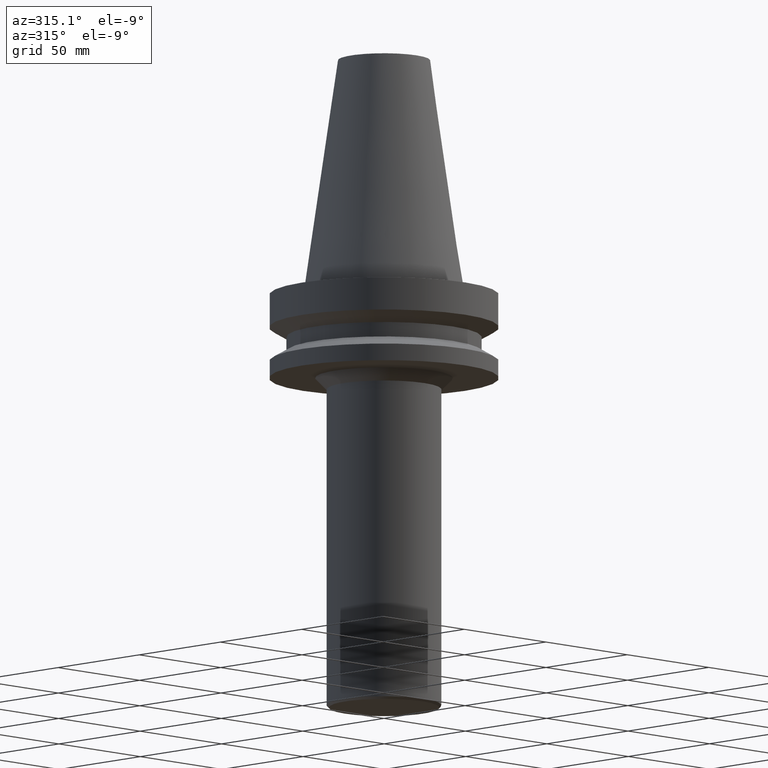
[diagram: clean part render]
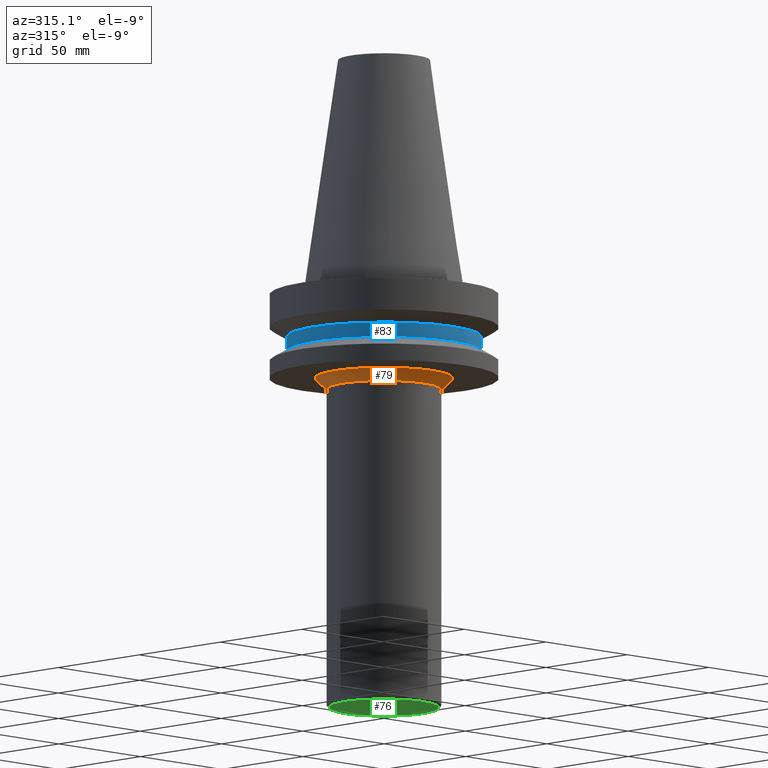
[diagram: same view with three faces highlighted in distinct colors, each labeled with its STEP entity id]
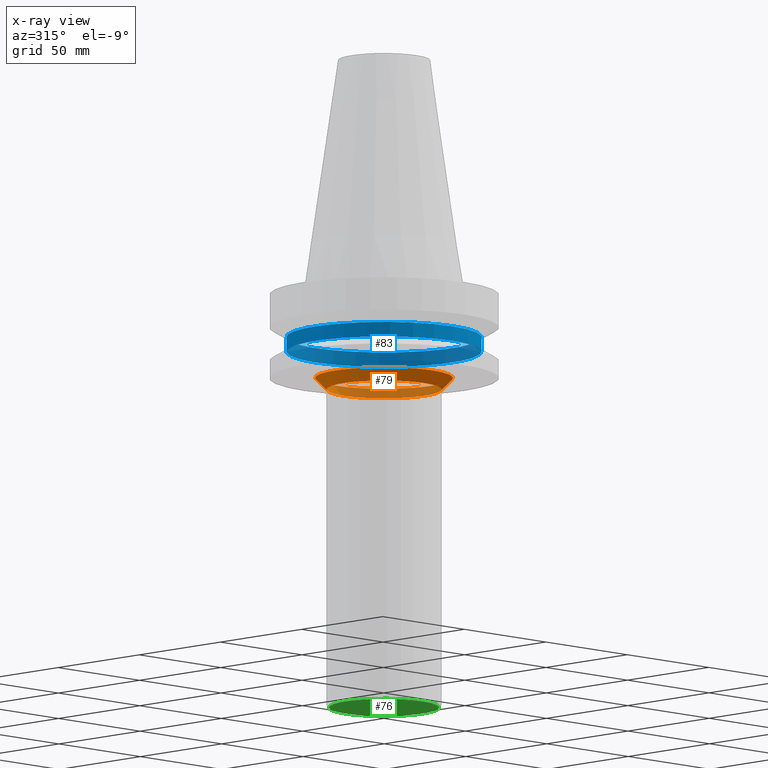
[diagram: x-ray of the same camera — body ghosted, the three highlighted faces saturated]
A machine part, auxiliary view with three faces highlighted in distinct colors.
The next image is the same camera in x-ray (body ghosted, the three faces saturated) — at least one of them is partly hidden behind the body in this view.
Their STEP definitions:

[orange] entity #79 — the highlighted conical surface has half-angle 45 deg.
#79=ADVANCED_FACE('',(#100,#101),#102,.T.);
#100=FACE_BOUND('',#140,.T.);
#101=FACE_BOUND('',#141,.T.);
#102=CONICAL_SURFACE('',#142,27.5,0.785398163397448);
#140=EDGE_LOOP('',(#188));
#141=EDGE_LOOP('',(#189));
#142=AXIS2_PLACEMENT_3D('',#190,#191,#192);
#188=ORIENTED_EDGE('',*,*,#242,.F.);
#189=ORIENTED_EDGE('',*,*,#241,.T.);
#190=CARTESIAN_POINT('',(2.47990976827343E-015,4.95981953654685E-015,-40.5000000000006));
#191=DIRECTION('',(-6.12323399573677E-017,-1.22464679914735E-016,1.0));
#192=DIRECTION('',(-1.23259516440783E-032,1.0,1.22464679914735E-016));
#241=EDGE_CURVE('',#257,#257,#258,.T.);
#242=EDGE_CURVE('',#259,#259,#260,.T.);
#257=VERTEX_POINT('',#283);
#258=CIRCLE('',#284,25.0);
#259=VERTEX_POINT('',#285);
#260=CIRCLE('',#286,30.0);
#283=CARTESIAN_POINT('',(2.63299061816685E-015,25.0,-43.0000000000006));
#284=AXIS2_PLACEMENT_3D('',#312,#313,#314);
#285=CARTESIAN_POINT('',(2.32682891838001E-015,30.0,-38.0000000000006));
#286=AXIS2_PLACEMENT_3D('',#315,#316,#317);
#312=CARTESIAN_POINT('',(2.63299061816685E-015,5.26598123633369E-015,-43.0000000000006));
#313=DIRECTION('',(-6.12323399573677E-017,-1.22464679914735E-016,1.0));
#314=DIRECTION('',(-1.23259516440783E-032,1.0,1.22464679914735E-016));
#315=CARTESIAN_POINT('',(2.32682891838001E-015,4.65365783676002E-015,-38.0000000000006));
#316=DIRECTION('',(-6.12323399573677E-017,-1.22464679914735E-016,1.0));
#317=DIRECTION('',(-1.23259516440783E-032,1.0,1.22464679914735E-016));

[blue] entity #83 — the highlighted cylindrical surface (bore or boss wall) has radius 42.5 mm, axis along (0, 0, -1).
#83=ADVANCED_FACE('',(#112,#113),#114,.T.);
#112=FACE_BOUND('',#152,.T.);
#113=FACE_BOUND('',#153,.T.);
#114=CYLINDRICAL_SURFACE('',#154,42.5000000000004);
#152=EDGE_LOOP('',(#208));
#153=EDGE_LOOP('',(#209));
#154=AXIS2_PLACEMENT_3D('',#210,#211,#212);
#208=ORIENTED_EDGE('',*,*,#246,.F.);
#209=ORIENTED_EDGE('',*,*,#245,.T.);
#210=CARTESIAN_POINT('',(1.42059028701093E-015,2.84118057402185E-015,-23.1999999999999));
#211=DIRECTION('',(6.12323399573677E-017,1.22464679914735E-016,-1.0));
#212=DIRECTION('',(-1.23259516440783E-032,1.0,1.22464679914735E-016));
#245=EDGE_CURVE('',#265,#265,#266,.T.);
#246=EDGE_CURVE('',#267,#267,#268,.T.);
#265=VERTEX_POINT('',#291);
#266=CIRCLE('',#292,42.5000000000004);
#267=VERTEX_POINT('',#293);
#268=CIRCLE('',#294,42.5000000000004);
#291=CARTESIAN_POINT('',(1.61468902700995E-015,42.5000000000004,-26.3698729810777));
#292=AXIS2_PLACEMENT_3D('',#324,#325,#326);
#293=CARTESIAN_POINT('',(1.2264915470119E-015,42.5000000000004,-20.0301270189221));
#294=AXIS2_PLACEMENT_3D('',#327,#328,#329);
#324=CARTESIAN_POINT('',(1.61468902700995E-015,3.22937805401991E-015,-26.3698729810777));
#325=DIRECTION('',(-6.12323399573677E-017,-1.22464679914735E-016,1.0));
#326=DIRECTION('',(-1.23259516440783E-032,1.0,1.22464679914735E-016));
#327=CARTESIAN_POINT('',(1.2264915470119E-015,2.45298309402379E-015,-20.0301270189221));
#328=DIRECTION('',(-6.12323399573677E-017,-1.22464679914735E-016,1.0));
#329=DIRECTION('',(-1.23259516440783E-032,1.0,1.22464679914735E-016));

[green] entity #76 — the highlighted planar face has unit normal (0, 0, -1).
#76=ADVANCED_FACE('',(#92),#93,.T.);
#92=FACE_OUTER_BOUND('',#132,.T.);
#93=PLANE('',#133);
#132=EDGE_LOOP('',(#174));
#133=AXIS2_PLACEMENT_3D('',#175,#176,#177);
#174=ORIENTED_EDGE('',*,*,#239,.F.);
#175=CARTESIAN_POINT('',(1.12055182121983E-014,12.0,-183.000000000001));
#176=DIRECTION('',(6.12323399573677E-017,1.30670257284824E-015,-1.0));
#177=DIRECTION('',(8.48396088945792E-032,-1.0,-1.30670257284824E-015));
#239=EDGE_CURVE('',#253,#253,#254,.T.);
#253=VERTEX_POINT('',#279);
#254=CIRCLE('',#280,24.0);
#279=CARTESIAN_POINT('',(1.12055182121983E-014,24.0,-183.000000000001));
#280=AXIS2_PLACEMENT_3D('',#306,#307,#308);
#306=CARTESIAN_POINT('',(1.12055182121983E-014,2.24110364243966E-014,-183.000000000001));
#307=DIRECTION('',(-6.12323399573677E-017,-1.22464679914735E-016,1.0));
#308=DIRECTION('',(-1.23259516440783E-032,1.0,1.22464679914735E-016));